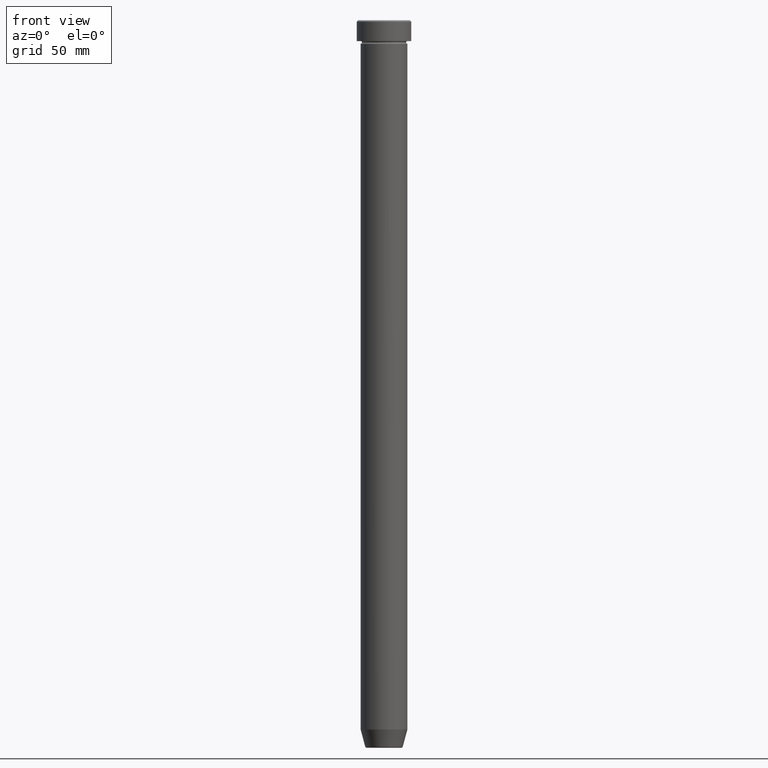
[diagram: clean part render]
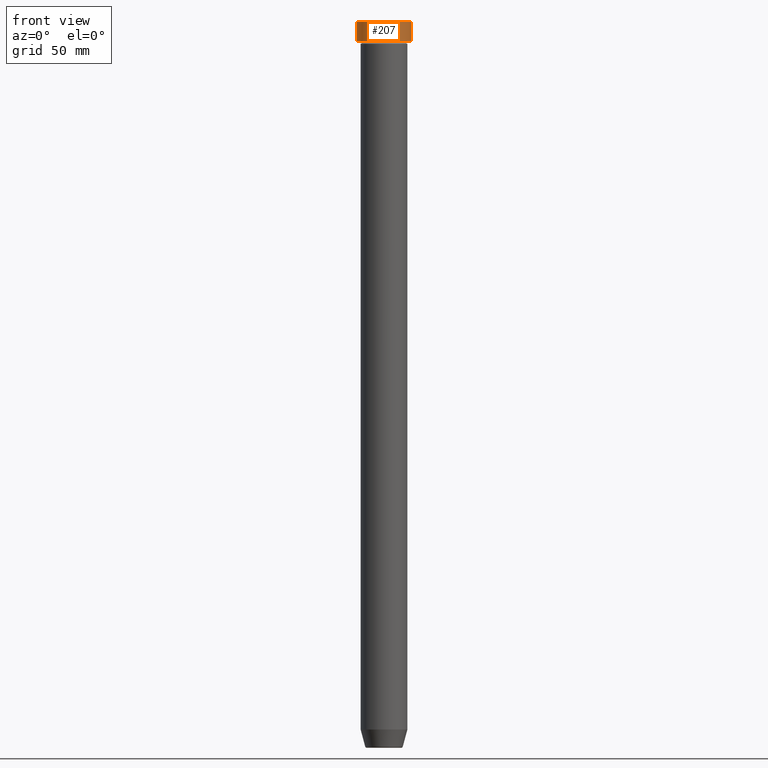
[diagram: same view with one face highlighted and labeled with its STEP entity id]
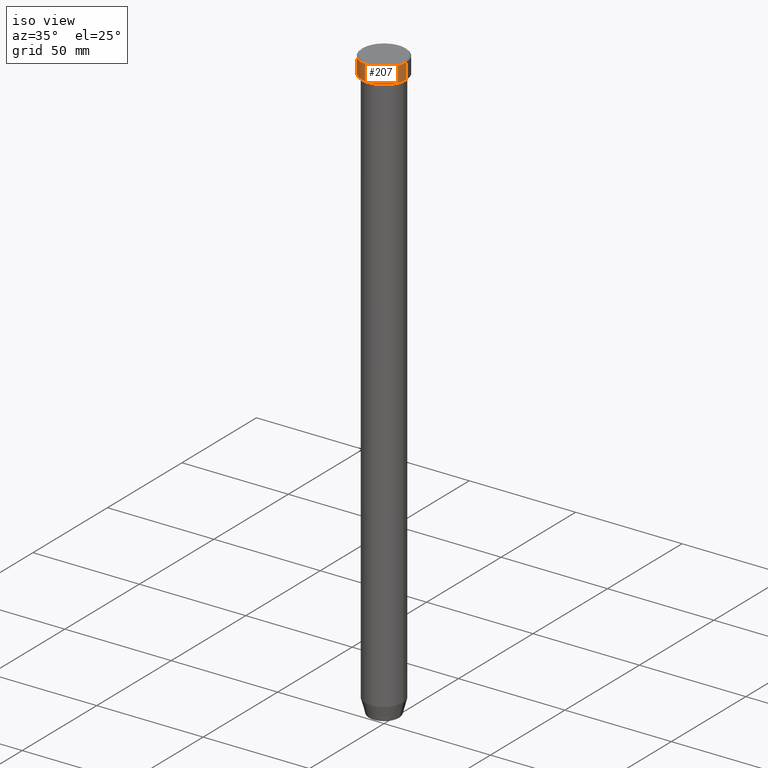
[diagram: same view with one face highlighted and labeled with its STEP entity id]
A machine part, front view. The second image highlights one B-rep face of the part: STEP entity #207.
A second angle (iso view) of the same face is appended — the face is thin or edge-on in the first view.
In plain terms, the highlighted cylindrical surface (edge-blend (fillet) strip) has radius 10.5 mm, axis along (-0, -0, 1).
Its self-contained STEP definition (entity closure, byte-faithful):
#1 = CARTESIAN_POINT ( 'NONE',  ( 10.50000000000000000, 0.000000000000000000, -0.5000000000000023315 ) ) ;
#8 = VECTOR ( 'NONE', #289, 1000.000000000000000 ) ;
#9 = FACE_OUTER_BOUND ( 'NONE', #254, .T. ) ;
#13 = LINE ( 'NONE', #472, #8 ) ;
#17 = AXIS2_PLACEMENT_3D ( 'NONE', #568, #56, #240 ) ;
#22 = ORIENTED_EDGE ( 'NONE', *, *, #128, .T. ) ;
#56 = DIRECTION ( 'NONE',  ( -0.000000000000000000, -0.000000000000000000, 1.000000000000000000 ) ) ;
#57 = VERTEX_POINT ( 'NONE', #1 ) ;
#76 = CIRCLE ( 'NONE', #352, 10.50000000000000000 ) ;
#77 = CARTESIAN_POINT ( 'NONE',  ( -10.50000000000000000, 1.285879139104720831E-15, -8.000000000000000000 ) ) ;
#95 = CYLINDRICAL_SURFACE ( 'NONE', #17, 10.50000000000000000 ) ;
#128 = EDGE_CURVE ( 'NONE', #431, #153, #520, .T. ) ;
#147 = EDGE_CURVE ( 'NONE', #153, #57, #13, .T. ) ;
#153 = VERTEX_POINT ( 'NONE', #328 ) ;
#185 = AXIS2_PLACEMENT_3D ( 'NONE', #380, #327, #191 ) ;
#191 = DIRECTION ( 'NONE',  ( 1.000000000000000000, 0.000000000000000000, 0.000000000000000000 ) ) ;
#207 = ADVANCED_FACE ( 'NONE', ( #9 ), #95, .T. ) ;
#213 = DIRECTION ( 'NONE',  ( -0.000000000000000000, -0.000000000000000000, 1.000000000000000000 ) ) ;
#222 = ORIENTED_EDGE ( 'NONE', *, *, #475, .F. ) ;
#240 = DIRECTION ( 'NONE',  ( 1.000000000000000000, 0.000000000000000000, 0.000000000000000000 ) ) ;
#242 = CARTESIAN_POINT ( 'NONE',  ( -10.50000000000000000, 1.285879139104720831E-15, -0.5000000000000023315 ) ) ;
#254 = EDGE_LOOP ( 'NONE', ( #222, #22, #465, #258 ) ) ;
#258 = ORIENTED_EDGE ( 'NONE', *, *, #569, .T. ) ;
#289 = DIRECTION ( 'NONE',  ( -0.000000000000000000, -0.000000000000000000, 1.000000000000000000 ) ) ;
#310 = CARTESIAN_POINT ( 'NONE',  ( -10.50000000000000000, 1.285879139104720831E-15, 0.000000000000000000 ) ) ;
#327 = DIRECTION ( 'NONE',  ( -0.000000000000000000, -0.000000000000000000, 1.000000000000000000 ) ) ;
#328 = CARTESIAN_POINT ( 'NONE',  ( 10.50000000000000000, 0.000000000000000000, -8.000000000000000000 ) ) ;
#352 = AXIS2_PLACEMENT_3D ( 'NONE', #408, #508, #365 ) ;
#365 = DIRECTION ( 'NONE',  ( 1.000000000000000000, 0.000000000000000000, 0.000000000000000000 ) ) ;
#380 = CARTESIAN_POINT ( 'NONE',  ( 0.000000000000000000, 0.000000000000000000, -8.000000000000000000 ) ) ;
#406 = VERTEX_POINT ( 'NONE', #242 ) ;
#408 = CARTESIAN_POINT ( 'NONE',  ( 0.000000000000000000, 0.000000000000000000, -0.5000000000000023315 ) ) ;
#417 = VECTOR ( 'NONE', #213, 1000.000000000000000 ) ;
#431 = VERTEX_POINT ( 'NONE', #77 ) ;
#465 = ORIENTED_EDGE ( 'NONE', *, *, #147, .T. ) ;
#472 = CARTESIAN_POINT ( 'NONE',  ( 10.50000000000000000, 0.000000000000000000, 0.000000000000000000 ) ) ;
#475 = EDGE_CURVE ( 'NONE', #431, #406, #599, .T. ) ;
#508 = DIRECTION ( 'NONE',  ( 0.000000000000000000, 0.000000000000000000, -1.000000000000000000 ) ) ;
#520 = CIRCLE ( 'NONE', #185, 10.50000000000000000 ) ;
#568 = CARTESIAN_POINT ( 'NONE',  ( 0.000000000000000000, 0.000000000000000000, 0.000000000000000000 ) ) ;
#569 = EDGE_CURVE ( 'NONE', #57, #406, #76, .T. ) ;
#599 = LINE ( 'NONE', #310, #417 ) ;